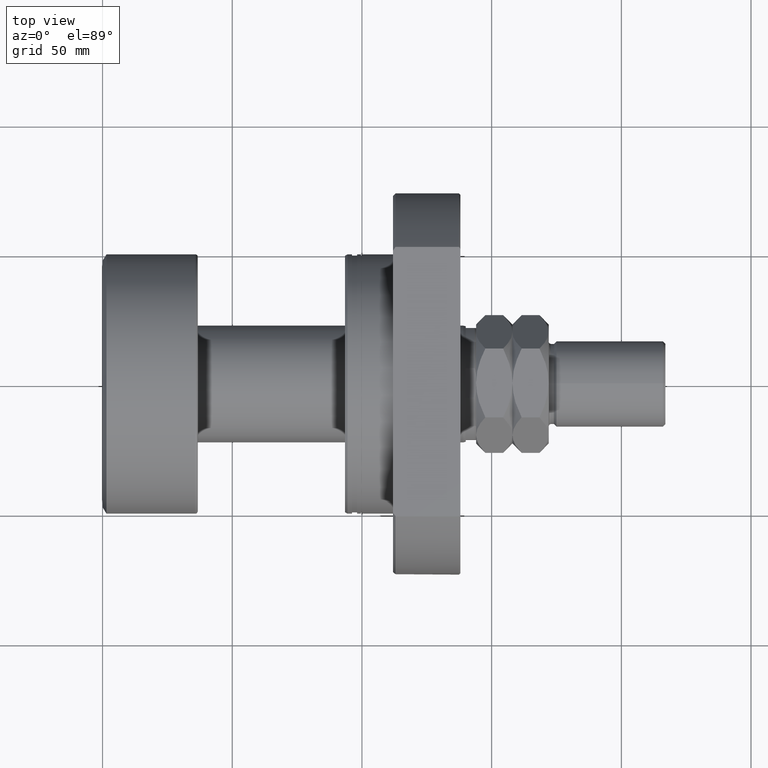
[diagram: clean part render]
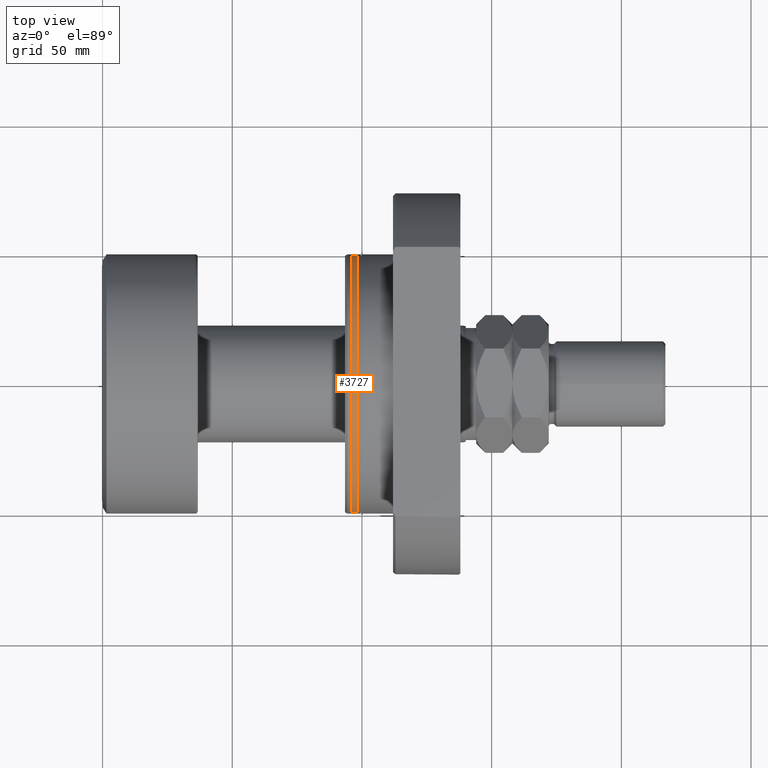
[diagram: same view with one face highlighted and labeled with its STEP entity id]
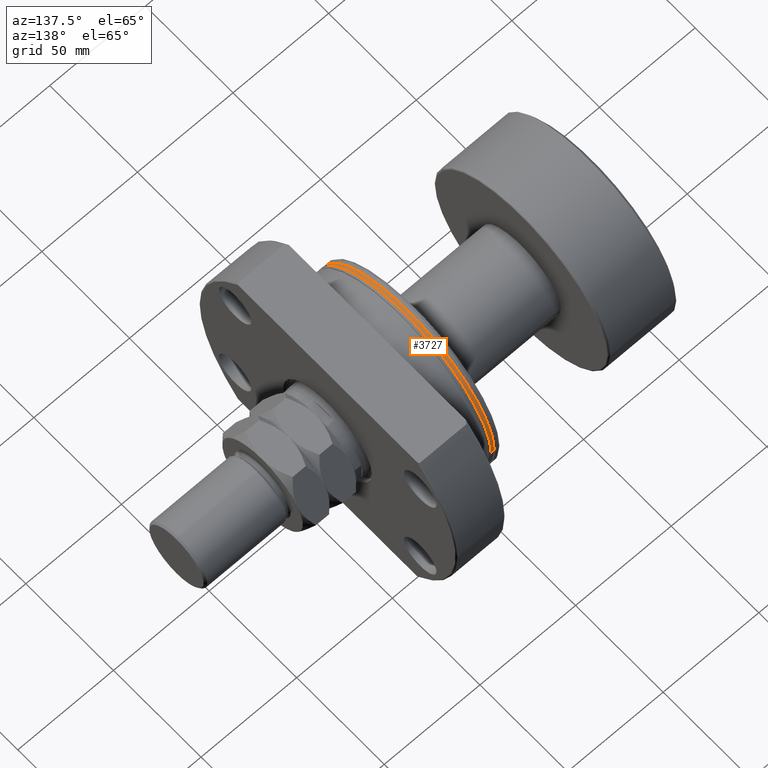
[diagram: same view with one face highlighted and labeled with its STEP entity id]
A machine part, top view. The second image highlights one B-rep face of the part: STEP entity #3727.
A second angle (auxiliary view) of the same face is appended — the face is thin or edge-on in the first view.
In plain terms, the highlighted cylindrical surface (partial cylindrical patch) has radius 49.5 mm, axis along (1, 0, 0).
Its self-contained STEP definition (entity closure, byte-faithful):
#29 = CARTESIAN_POINT ( 'NONE',  ( 44.50000000000000000, 2.449293598294705724E-15, 0.000000000000000000 ) ) ;
#60 = CARTESIAN_POINT ( 'NONE',  ( 44.50000000000000000, -49.50000000000000000, 6.062001655779398511E-15 ) ) ;
#82 = VECTOR ( 'NONE', #3568, 1000.000000000000000 ) ;
#84 = DIRECTION ( 'NONE',  ( 1.000000000000000000, 5.504030557965630938E-17, -0.000000000000000000 ) ) ;
#135 = ORIENTED_EDGE ( 'NONE', *, *, #3516, .F. ) ;
#186 = EDGE_CURVE ( 'NONE', #3747, #3287, #3381, .T. ) ;
#354 = DIRECTION ( 'NONE',  ( 1.000000000000000000, 5.504030557965630938E-17, -0.000000000000000000 ) ) ;
#425 = CYLINDRICAL_SURFACE ( 'NONE', #593, 49.50000000000000000 ) ;
#593 = AXIS2_PLACEMENT_3D ( 'NONE', #29, #84, #4194 ) ;
#653 = CARTESIAN_POINT ( 'NONE',  ( 4.699999999998552447, 2.586894362243048990E-16, 0.000000000000000000 ) ) ;
#812 = EDGE_LOOP ( 'NONE', ( #3158, #4500, #1907, #135 ) ) ;
#836 = CARTESIAN_POINT ( 'NONE',  ( 2.699999999999792788, 1.486088250650606153E-16, 0.000000000000000000 ) ) ;
#1011 = VERTEX_POINT ( 'NONE', #1682 ) ;
#1218 = LINE ( 'NONE', #4289, #82 ) ;
#1425 = DIRECTION ( 'NONE',  ( 1.000000000000000000, 5.504030557965630938E-17, -0.000000000000000000 ) ) ;
#1577 = CIRCLE ( 'NONE', #4750, 49.50000000000000000 ) ;
#1682 = CARTESIAN_POINT ( 'NONE',  ( 2.699999999999795453, -49.50000000000000000, 6.062001655779398511E-15 ) ) ;
#1907 = ORIENTED_EDGE ( 'NONE', *, *, #186, .F. ) ;
#1973 = VECTOR ( 'NONE', #2703, 1000.000000000000000 ) ;
#2340 = VERTEX_POINT ( 'NONE', #3238 ) ;
#2703 = DIRECTION ( 'NONE',  ( 1.000000000000000000, 5.504030557965630938E-17, -0.000000000000000000 ) ) ;
#2734 = EDGE_CURVE ( 'NONE', #2340, #1011, #1577, .T. ) ;
#2954 = DIRECTION ( 'NONE',  ( -5.256737805990325406E-17, 1.000000000000000000, 0.000000000000000000 ) ) ;
#3030 = EDGE_CURVE ( 'NONE', #1011, #3287, #4221, .T. ) ;
#3158 = ORIENTED_EDGE ( 'NONE', *, *, #2734, .T. ) ;
#3238 = CARTESIAN_POINT ( 'NONE',  ( 2.699999999999790123, 49.50000000000000000, 0.000000000000000000 ) ) ;
#3287 = VERTEX_POINT ( 'NONE', #4783 ) ;
#3381 = CIRCLE ( 'NONE', #4485, 49.49999999999999289 ) ;
#3468 = FACE_OUTER_BOUND ( 'NONE', #812, .T. ) ;
#3516 = EDGE_CURVE ( 'NONE', #2340, #3747, #1218, .T. ) ;
#3568 = DIRECTION ( 'NONE',  ( 1.000000000000000000, 5.504030557965630938E-17, -0.000000000000000000 ) ) ;
#3727 = ADVANCED_FACE ( 'NONE', ( #3468 ), #425, .T. ) ;
#3747 = VERTEX_POINT ( 'NONE', #3872 ) ;
#3780 = DIRECTION ( 'NONE',  ( -5.256737805990324790E-17, 1.000000000000000000, 0.000000000000000000 ) ) ;
#3872 = CARTESIAN_POINT ( 'NONE',  ( 4.699999999998549782, 49.49999999999999289, 0.000000000000000000 ) ) ;
#4194 = DIRECTION ( 'NONE',  ( 0.000000000000000000, 1.000000000000000000, 0.000000000000000000 ) ) ;
#4221 = LINE ( 'NONE', #60, #1973 ) ;
#4289 = CARTESIAN_POINT ( 'NONE',  ( 44.50000000000000000, 49.50000000000000000, 0.000000000000000000 ) ) ;
#4485 = AXIS2_PLACEMENT_3D ( 'NONE', #653, #1425, #2954 ) ;
#4500 = ORIENTED_EDGE ( 'NONE', *, *, #3030, .T. ) ;
#4750 = AXIS2_PLACEMENT_3D ( 'NONE', #836, #354, #3780 ) ;
#4783 = CARTESIAN_POINT ( 'NONE',  ( 4.699999999998555111, -49.49999999999999289, 6.062001655779397722E-15 ) ) ;